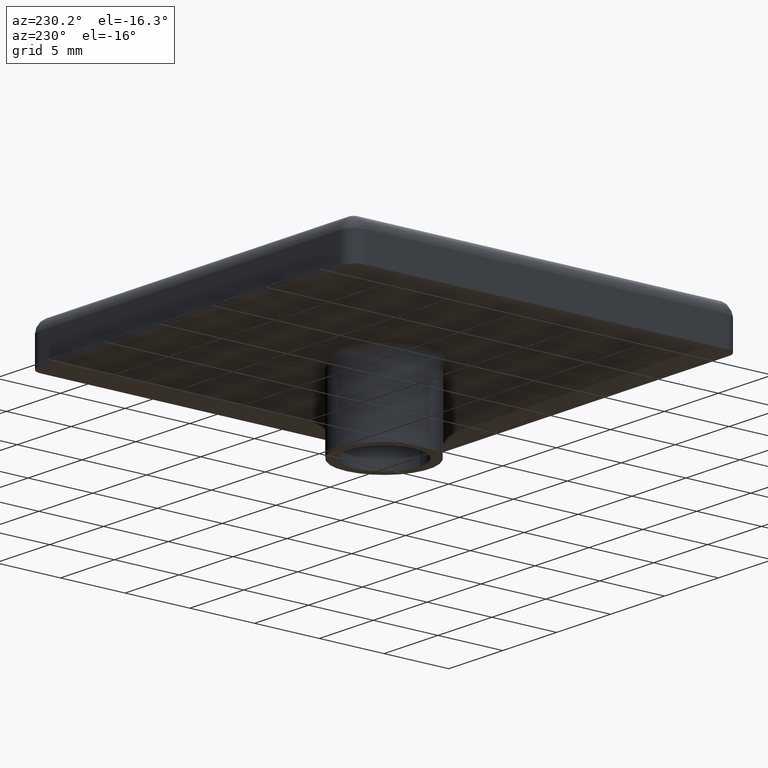
[diagram: clean part render]
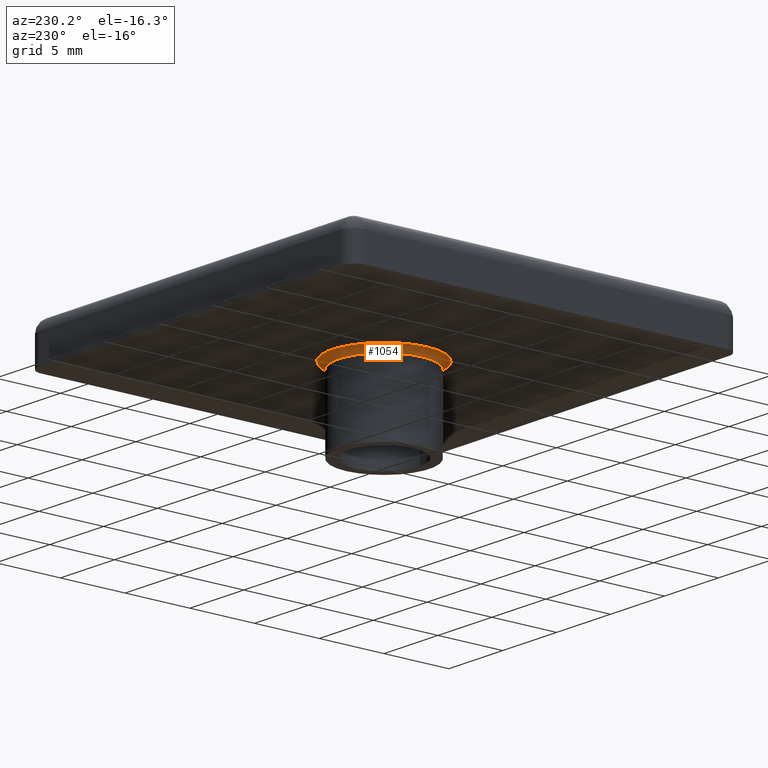
[diagram: same view with one face highlighted and labeled with its STEP entity id]
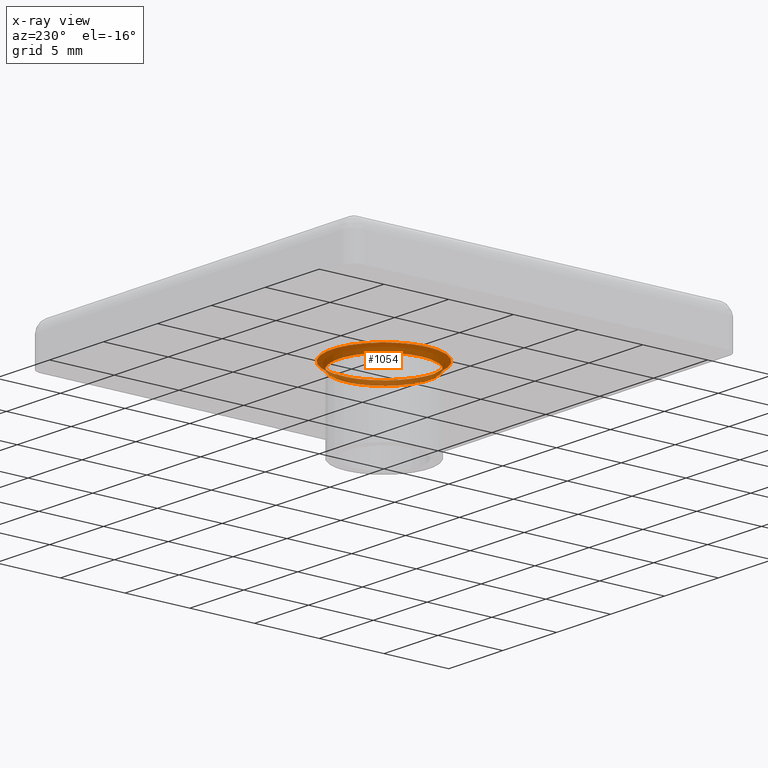
[diagram: x-ray of the same camera — body ghosted, the highlighted face saturated]
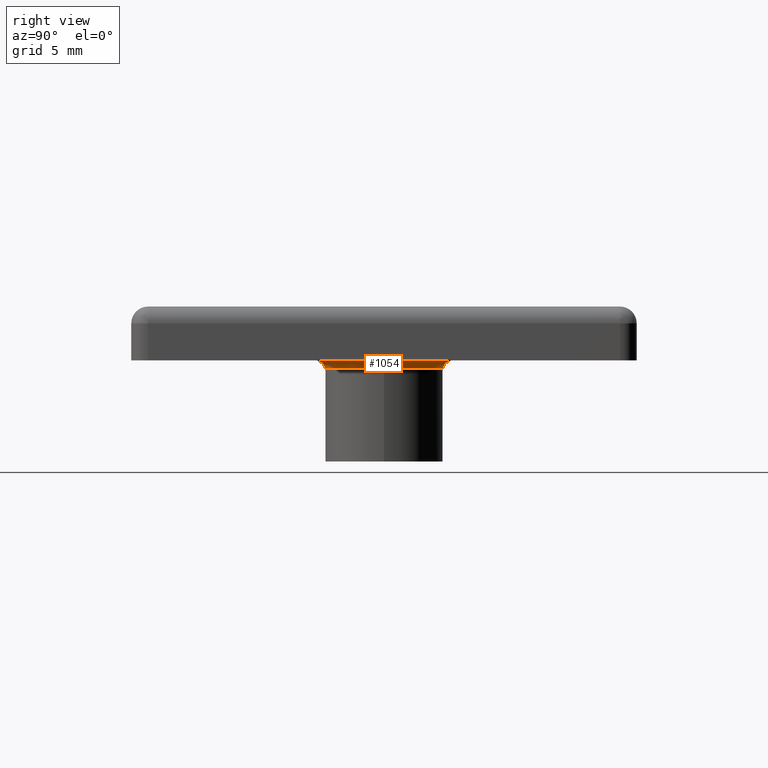
[diagram: same view with one face highlighted and labeled with its STEP entity id]
A machine part, auxiliary view. The second image highlights one B-rep face of the part: STEP entity #1054.
The next image is the same camera in x-ray: the body ghosted, the highlighted face saturated — about 24% of this face is hidden behind the body in this view.
A second angle (right view) of the same face is appended — the face is thin or edge-on in the first view.
In plain terms, the highlighted face is a freeform B-spline surface patch.
Its self-contained STEP definition (entity closure, byte-faithful):
#836=CARTESIAN_POINT('',(-4.0,0.0,0.0));
#837=VERTEX_POINT('',#836);
#838=CARTESIAN_POINT('',(4.0,0.0,0.0));
#839=VERTEX_POINT('',#838);
#840=CARTESIAN_POINT('',(0.0,0.0,0.0));
#841=DIRECTION('',(0.0,0.0,-1.0));
#842=DIRECTION('',(1.0,0.0,0.0));
#843=AXIS2_PLACEMENT_3D('',#840,#841,#842);
#844=CIRCLE('',#843,4.0);
#845=EDGE_CURVE('',#837,#839,#844,.T.);
#847=CARTESIAN_POINT('',(0.0,0.0,0.0));
#848=DIRECTION('',(0.0,0.0,-1.0));
#849=DIRECTION('',(1.0,0.0,0.0));
#850=AXIS2_PLACEMENT_3D('',#847,#848,#849);
#851=CIRCLE('',#850,4.0);
#852=EDGE_CURVE('',#839,#837,#851,.T.);
#864=CARTESIAN_POINT('',(3.500000000000000,0.0,-0.500000000000000));
#865=VERTEX_POINT('',#864);
#872=CARTESIAN_POINT('',(-3.500000000000000,0.0,-0.500000000000000));
#873=VERTEX_POINT('',#872);
#874=CARTESIAN_POINT('',(0.0,0.0,-0.500000000000000));
#875=DIRECTION('',(0.0,0.0,-1.0));
#876=DIRECTION('',(1.0,0.0,0.0));
#877=AXIS2_PLACEMENT_3D('',#874,#875,#876);
#878=CIRCLE('',#877,3.500000000000000);
#879=EDGE_CURVE('',#865,#873,#878,.T.);
#881=CARTESIAN_POINT('',(0.0,0.0,-0.500000000000000));
#882=DIRECTION('',(0.0,0.0,-1.0));
#883=DIRECTION('',(1.0,0.0,0.0));
#884=AXIS2_PLACEMENT_3D('',#881,#882,#883);
#885=CIRCLE('',#884,3.500000000000000);
#886=EDGE_CURVE('',#873,#865,#885,.T.);
#892=CARTESIAN_POINT('',(3.500000000000000,0.0,-0.500000000000000));
#893=CARTESIAN_POINT('',(3.500000000000000,0.0,-0.434969892661291));
#894=CARTESIAN_POINT('',(3.526019388057889,0.0,-0.303486091328363));
#895=CARTESIAN_POINT('',(3.637293544263527,0.0,-0.137293544263526));
#896=CARTESIAN_POINT('',(3.803486091328362,0.0,-0.026019388057890));
#897=CARTESIAN_POINT('',(3.934969892661290,0.0,-3.981946E-018));
#898=CARTESIAN_POINT('',(4.0,0.0,0.0));
#899=CARTESIAN_POINT('',(3.500000000000000,-0.455210751370966,-0.500000000000000));
#900=CARTESIAN_POINT('',(3.500000000000000,-0.455210751370966,-0.434969892661291));
#901=CARTESIAN_POINT('',(3.526019388057889,-0.458594838567550,-0.303486091328363));
#902=CARTESIAN_POINT('',(3.637293544263527,-0.473067179211704,-0.137293544263526));
#903=CARTESIAN_POINT('',(3.803486091328362,-0.494682217560744,-0.026019388057890));
#904=CARTESIAN_POINT('',(3.934969892661290,-0.511783028988707,-1.638791E-018));
#905=CARTESIAN_POINT('',(4.0,-0.520240858709675,0.0));
#906=CARTESIAN_POINT('',(3.361977654030577,-1.148640367908388,-0.500000000000000));
#907=CARTESIAN_POINT('',(3.361977654030577,-1.148640367908388,-0.434969892661290));
#908=CARTESIAN_POINT('',(3.386970968665482,-1.157179487757408,-0.303486091328362));
#909=CARTESIAN_POINT('',(3.493857033418188,-1.193697769963903,-0.137293544263526));
#910=CARTESIAN_POINT('',(3.653495784703444,-1.248239332365099,-0.026019388057890));
#911=CARTESIAN_POINT('',(3.779794528117246,-1.291390075775684,1.310103E-017));
#912=CARTESIAN_POINT('',(3.842260176034945,-1.312731849038157,0.0));
#913=CARTESIAN_POINT('',(2.928733959305975,-1.956778279930341,-0.500000000000000));
#914=CARTESIAN_POINT('',(2.928733959305975,-1.956778279930341,-0.434969892661291));
#915=CARTESIAN_POINT('',(2.950506492278977,-1.971325186618556,-0.303486091328363));
#916=CARTESIAN_POINT('',(3.043618606585423,-2.033536287184492,-0.137293544263526));
#917=CARTESIAN_POINT('',(3.182685394120377,-2.126451134722424,-0.026019388057890));
#918=CARTESIAN_POINT('',(3.292708558138202,-2.199961033754125,-3.338981E-017));
#919=CARTESIAN_POINT('',(3.347124524921115,-2.236318034206104,0.0));
#920=CARTESIAN_POINT('',(2.347125804420760,-2.666893050750592,-0.500000000000000));
#921=CARTESIAN_POINT('',(2.347125804420760,-2.666893050750592,-0.434969892661290));
#922=CARTESIAN_POINT('',(2.364574597885304,-2.686719029378127,-0.303486091328362));
#923=CARTESIAN_POINT('',(2.439195867426848,-2.771506536210397,-0.137293544263526));
#924=CARTESIAN_POINT('',(2.550645814774929,-2.898140178740042,-0.026019388057890));
#925=CARTESIAN_POINT('',(2.638819821338315,-2.998326817614629,4.477111E-017));
#926=CARTESIAN_POINT('',(2.682429490766582,-3.047877772286392,0.0));
#927=CARTESIAN_POINT('',(1.373903745234085,-3.318279579758765,-0.500000000000000));
#928=CARTESIAN_POINT('',(1.373903745234085,-3.318279579758765,-0.434969892661291));
#929=CARTESIAN_POINT('',(1.384117498005923,-3.342948038064569,-0.303486091328363));
#930=CARTESIAN_POINT('',(1.427797492279834,-3.448444826719442,-0.137293544263526));
#931=CARTESIAN_POINT('',(1.493035367377654,-3.606008636786108,-0.026019388057890));
#932=CARTESIAN_POINT('',(1.544648535117346,-3.730665783366715,-2.104800E-017));
#933=CARTESIAN_POINT('',(1.570175708838954,-3.792319519724303,0.0));
#934=CARTESIAN_POINT('',(0.000095951145537,-3.590980422643334,-0.500000000000000));
#935=CARTESIAN_POINT('',(0.000095951145537,-3.590980422643334,-0.434969892661290));
#936=CARTESIAN_POINT('',(0.000096664456991,-3.617676169250488,-0.303486091328362));
#937=CARTESIAN_POINT('',(0.000099714994922,-3.731842831102089,-0.137293544263526));
#938=CARTESIAN_POINT('',(0.000104271099285,-3.902355454787534,-0.026019388057890));
#939=CARTESIAN_POINT('',(0.000107875676816,-4.037257099496467,2.441747E-018));
#940=CARTESIAN_POINT('',(0.000109658452042,-4.103977625878096,0.0));
#941=CARTESIAN_POINT('',(-1.374287549816231,-3.317798729667897,-0.500000000000000));
#942=CARTESIAN_POINT('',(-1.374287549816231,-3.317798729667897,-0.434969892661290));
#943=CARTESIAN_POINT('',(-1.384504155833887,-3.342463613280811,-0.303486091328363));
#944=CARTESIAN_POINT('',(-1.428196352259520,-3.447945114453364,-0.137293544263526));
#945=CARTESIAN_POINT('',(-1.493452451774791,-3.605486092033927,-0.026019388057890));
#946=CARTESIAN_POINT('',(-1.545080037824607,-3.730125174615157,-1.261066E-017));
#947=CARTESIAN_POINT('',(-1.570614342647121,-3.791769976763310,0.0));
#948=CARTESIAN_POINT('',(-2.539297831547493,-2.539294841422100,-0.500000000000000));
#949=CARTESIAN_POINT('',(-2.539297831547493,-2.539294841422100,-0.434969892661290));
#950=CARTESIAN_POINT('',(-2.558175253168519,-2.558172240814202,-0.303486091328362));
#951=CARTESIAN_POINT('',(-2.638906174185734,-2.638903066767509,-0.137293544263526));
#952=CARTESIAN_POINT('',(-2.759481138294618,-2.759477888894519,-0.026019388057890));
#953=CARTESIAN_POINT('',(-2.854874433039853,-2.854871071310312,2.410923E-017));
#954=CARTESIAN_POINT('',(-2.902054664625706,-2.902051247339543,0.0));
#955=CARTESIAN_POINT('',(-3.317763528911295,-1.374264309561196,-0.500000000000000));
#956=CARTESIAN_POINT('',(-3.317763528911295,-1.374264309561196,-0.434969892661291));
#957=CARTESIAN_POINT('',(-3.342428150837882,-1.384480742808219,-0.303486091328363));
#958=CARTESIAN_POINT('',(-3.447908532886294,-1.428172200365347,-0.137293544263526));
#959=CARTESIAN_POINT('',(-3.605447839008745,-1.493427196349996,-0.026019388057890));
#960=CARTESIAN_POINT('',(-3.730085599210177,-1.545053909337790,2.592351E-018));
#961=CARTESIAN_POINT('',(-3.791729747327194,-1.570587782355653,0.0));
#962=CARTESIAN_POINT('',(-3.591118235544352,-2.942091E-015,-0.500000000000000));
#963=CARTESIAN_POINT('',(-3.591118235544352,-2.942091E-015,-0.434969892661291));
#964=CARTESIAN_POINT('',(-3.617815006667892,-3.053113E-015,-0.303486091328362));
#965=CARTESIAN_POINT('',(-3.731986049952145,-2.942091E-015,-0.137293544263526));
#966=CARTESIAN_POINT('',(-3.902505217488170,-3.219647E-015,-0.026019388057890));
#967=CARTESIAN_POINT('',(-4.037412039386847,-3.164136E-015,-3.215162E-018));
#968=CARTESIAN_POINT('',(-4.104135126336403,-3.275158E-015,0.0));
#969=CARTESIAN_POINT('',(-3.317763528911294,1.374264309561199,-0.500000000000000));
#970=CARTESIAN_POINT('',(-3.317763528911294,1.374264309561199,-0.434969892661291));
#971=CARTESIAN_POINT('',(-3.342428150837882,1.384480742808222,-0.303486091328363));
#972=CARTESIAN_POINT('',(-3.447908532886292,1.428172200365349,-0.137293544263526));
#973=CARTESIAN_POINT('',(-3.605447839008746,1.493427196349999,-0.026019388057890));
#974=CARTESIAN_POINT('',(-3.730085599210177,1.545053909337792,-1.362338E-017));
#975=CARTESIAN_POINT('',(-3.791729747327193,1.570587782355656,0.0));
#976=CARTESIAN_POINT('',(-2.539297831547494,2.539294841422099,-0.500000000000000));
#977=CARTESIAN_POINT('',(-2.539297831547494,2.539294841422099,-0.434969892661290));
#978=CARTESIAN_POINT('',(-2.558175253168520,2.558172240814201,-0.303486091328362));
#979=CARTESIAN_POINT('',(-2.638906174185737,2.638903066767508,-0.137293544263526));
#980=CARTESIAN_POINT('',(-2.759481138294619,2.759477888894518,-0.026019388057890));
#981=CARTESIAN_POINT('',(-2.854874433039854,2.854871071310311,3.381700E-017));
#982=CARTESIAN_POINT('',(-2.902054664625708,2.902051247339542,0.0));
#983=CARTESIAN_POINT('',(-1.374287549816234,3.317798729667897,-0.500000000000000));
#984=CARTESIAN_POINT('',(-1.374287549816234,3.317798729667897,-0.434969892661291));
#985=CARTESIAN_POINT('',(-1.384504155833890,3.342463613280810,-0.303486091328363));
#986=CARTESIAN_POINT('',(-1.428196352259521,3.447945114453363,-0.137293544263526));
#987=CARTESIAN_POINT('',(-1.493452451774795,3.605486092033928,-0.026019388057890));
#988=CARTESIAN_POINT('',(-1.545080037824610,3.730125174615156,-3.522598E-017));
#989=CARTESIAN_POINT('',(-1.570614342647124,3.791769976763310,0.0));
#990=CARTESIAN_POINT('',(0.000095951145536,3.590980422643334,-0.500000000000000));
#991=CARTESIAN_POINT('',(0.000095951145536,3.590980422643334,-0.434969892661290));
#992=CARTESIAN_POINT('',(0.000096664456990,3.617676169250488,-0.303486091328362));
#993=CARTESIAN_POINT('',(0.000099714994920,3.731842831102090,-0.137293544263526));
#994=CARTESIAN_POINT('',(0.000104271099284,3.902355454787533,-0.026019388057890));
#995=CARTESIAN_POINT('',(0.000107875676815,4.037257099496467,4.625278E-019));
#996=CARTESIAN_POINT('',(0.000109658452041,4.103977625878096,0.0));
#997=CARTESIAN_POINT('',(1.373903745234086,3.318279579758763,-0.500000000000000));
#998=CARTESIAN_POINT('',(1.373903745234086,3.318279579758763,-0.434969892661290));
#999=CARTESIAN_POINT('',(1.384117498005925,3.342948038064566,-0.303486091328363));
#1000=CARTESIAN_POINT('',(1.427797492279836,3.448444826719440,-0.137293544263526));
#1001=CARTESIAN_POINT('',(1.493035367377654,3.606008636786107,-0.026019388057890));
#1002=CARTESIAN_POINT('',(1.544648535117348,3.730665783366713,9.484196E-018));
#1003=CARTESIAN_POINT('',(1.570175708838956,3.792319519724301,0.0));
#1004=CARTESIAN_POINT('',(2.347125804420758,2.666893050750596,-0.500000000000000));
#1005=CARTESIAN_POINT('',(2.347125804420758,2.666893050750596,-0.434969892661291));
#1006=CARTESIAN_POINT('',(2.364574597885302,2.686719029378129,-0.303486091328362));
#1007=CARTESIAN_POINT('',(2.439195867426846,2.771506536210403,-0.137293544263526));
#1008=CARTESIAN_POINT('',(2.550645814774929,2.898140178740044,-0.026019388057890));
#1009=CARTESIAN_POINT('',(2.638819821338314,2.998326817614632,-4.379232E-018));
#1010=CARTESIAN_POINT('',(2.682429490766581,3.047877772286395,0.0));
#1011=CARTESIAN_POINT('',(2.928733959305975,1.956778279930339,-0.500000000000000));
#1012=CARTESIAN_POINT('',(2.928733959305975,1.956778279930339,-0.434969892661291));
#1013=CARTESIAN_POINT('',(2.950506492278977,1.971325186618555,-0.303486091328363));
#1014=CARTESIAN_POINT('',(3.043618606585423,2.033536287184490,-0.137293544263526));
#1015=CARTESIAN_POINT('',(3.182685394120377,2.126451134722422,-0.026019388057890));
#1016=CARTESIAN_POINT('',(3.292708558138202,2.199961033754124,-1.983064E-017));
#1017=CARTESIAN_POINT('',(3.347124524921114,2.236318034206102,0.0));
#1018=CARTESIAN_POINT('',(3.361977654030577,1.148640367908390,-0.500000000000000));
#1019=CARTESIAN_POINT('',(3.361977654030577,1.148640367908390,-0.434969892661291));
#1020=CARTESIAN_POINT('',(3.386970968665481,1.157179487757409,-0.303486091328363));
#1021=CARTESIAN_POINT('',(3.493857033418188,1.193697769963905,-0.137293544263526));
#1022=CARTESIAN_POINT('',(3.653495784703444,1.248239332365102,-0.026019388057890));
#1023=CARTESIAN_POINT('',(3.779794528117245,1.291390075775686,-1.884245E-017));
#1024=CARTESIAN_POINT('',(3.842260176034944,1.312731849038160,0.0));
#1025=CARTESIAN_POINT('',(3.500000000000000,0.455210751370967,-0.500000000000000));
#1026=CARTESIAN_POINT('',(3.500000000000000,0.455210751370967,-0.434969892661291));
#1027=CARTESIAN_POINT('',(3.526019388057889,0.458594838567551,-0.303486091328363));
#1028=CARTESIAN_POINT('',(3.637293544263527,0.473067179211705,-0.137293544263526));
#1029=CARTESIAN_POINT('',(3.803486091328362,0.494682217560745,-0.026019388057890));
#1030=CARTESIAN_POINT('',(3.934969892661290,0.511783028988709,-6.325100E-018));
#1031=CARTESIAN_POINT('',(4.0,0.520240858709677,0.0));
#1032=CARTESIAN_POINT('',(3.500000000000000,8.572528E-016,-0.500000000000000));
#1033=CARTESIAN_POINT('',(3.500000000000000,8.572528E-016,-0.434969892661291));
#1034=CARTESIAN_POINT('',(3.526019388057889,8.636257E-016,-0.303486091328363));
#1035=CARTESIAN_POINT('',(3.637293544263527,8.908800E-016,-0.137293544263526));
#1036=CARTESIAN_POINT('',(3.803486091328362,9.315854E-016,-0.026019388057890));
#1037=CARTESIAN_POINT('',(3.934969892661290,9.637897E-016,-3.981946E-018));
#1038=CARTESIAN_POINT('',(4.0,9.797174E-016,0.0));
#1039=B_SPLINE_SURFACE_WITH_KNOTS('',3,3,((#892,#899,#906,#913,#920,#927,#934,#941,#948,#955,#962,#969,#976,#983,#990,#997,#1004,#1011,#1018,#1025,#1032),(#893,#900,#907,#914,#921,#928,#935,#942,#949,#956,#963,#970,#977,#984,#991,#998,#1005,#1012,#1019,#1026,#1033),(#894,#901,#908,#915,#922,#929,#936,#943,#950,#957,#964,#971,#978,#985,#992,#999,#1006,#1013,#1020,#1027,#1034),(#895,#902,#909,#916,#923,#930,#937,#944,#951,#958,#965,#972,#979,#986,#993,#1000,#1007,#1014,#1021,#1028,#1035),(#896,#903,#910,#917,#924,#931,#938,#945,#952,#959,#966,#973,#980,#987,#994,#1001,#1008,#1015,#1022,#1029,#1036),(#897,#904,#911,#918,#925,#932,#939,#946,#953,#960,#967,#974,#981,#988,#995,#1002,#1009,#1016,#1023,#1030,#1037),(#898,#905,#912,#919,#926,#933,#940,#947,#954,#961,#968,#975,#982,#989,#996,#1003,#1010,#1017,#1024,#1031,#1038)),.UNSPECIFIED.,.F.,.T.,.U.,(4,1,1,1,4),(4,1,1,1,1,1,1,1,1,1,1,1,1,1,1,1,1,1,4),(0.0,0.195090322016128,0.390180644032257,0.585270966048385,0.780361288064513),(0.0,1.443135015887090,2.168193880442215,2.893252744997339,4.336387760884430,5.779522776771520,7.222657792658611,8.665792808545699,10.108927824432790,11.552062840319881,12.995197856206968,14.438332872094060,15.881467887981149,17.324602903868239,18.767737919755330,20.210872935642421,20.935931800197544,21.660990664752667,23.104125680639761),.UNSPECIFIED.);
#1040=ORIENTED_EDGE('',*,*,#886,.F.);
#1041=ORIENTED_EDGE('',*,*,#879,.F.);
#1042=CARTESIAN_POINT('',(4.0,0.0,-0.500000000000000));
#1043=DIRECTION('',(0.0,1.0,0.0));
#1044=DIRECTION('',(-1.0,0.0,0.0));
#1045=AXIS2_PLACEMENT_3D('',#1042,#1043,#1044);
#1046=CIRCLE('',#1045,0.500000000000000);
#1047=EDGE_CURVE('',#865,#839,#1046,.T.);
#1048=ORIENTED_EDGE('',*,*,#1047,.T.);
#1049=ORIENTED_EDGE('',*,*,#852,.T.);
#1050=ORIENTED_EDGE('',*,*,#845,.T.);
#1051=ORIENTED_EDGE('',*,*,#1047,.F.);
#1052=EDGE_LOOP('',(#1040,#1041,#1048,#1049,#1050,#1051));
#1053=FACE_OUTER_BOUND('',#1052,.T.);
#1054=ADVANCED_FACE('',(#1053),#1039,.T.);